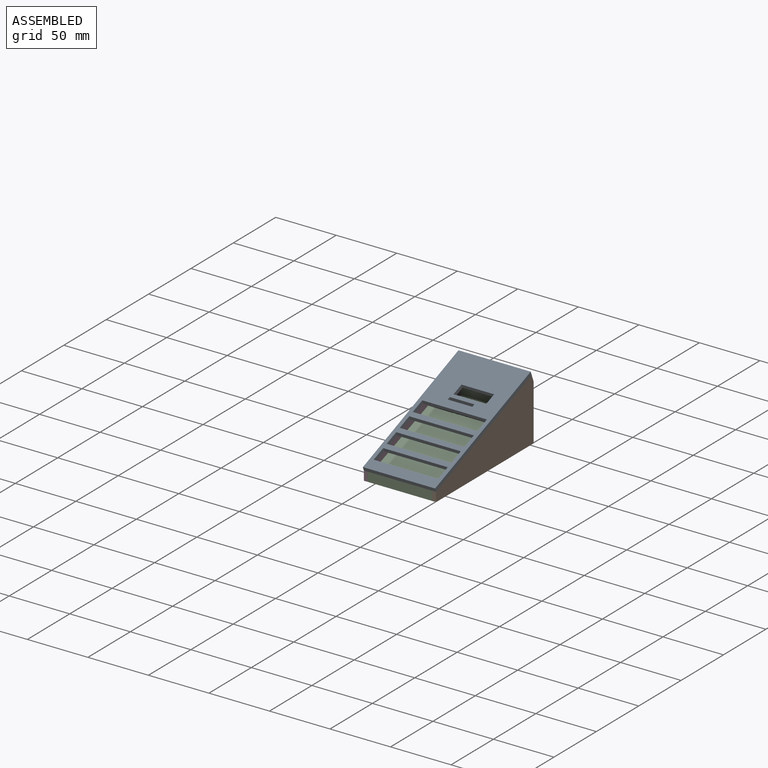
[diagram: assembled view]
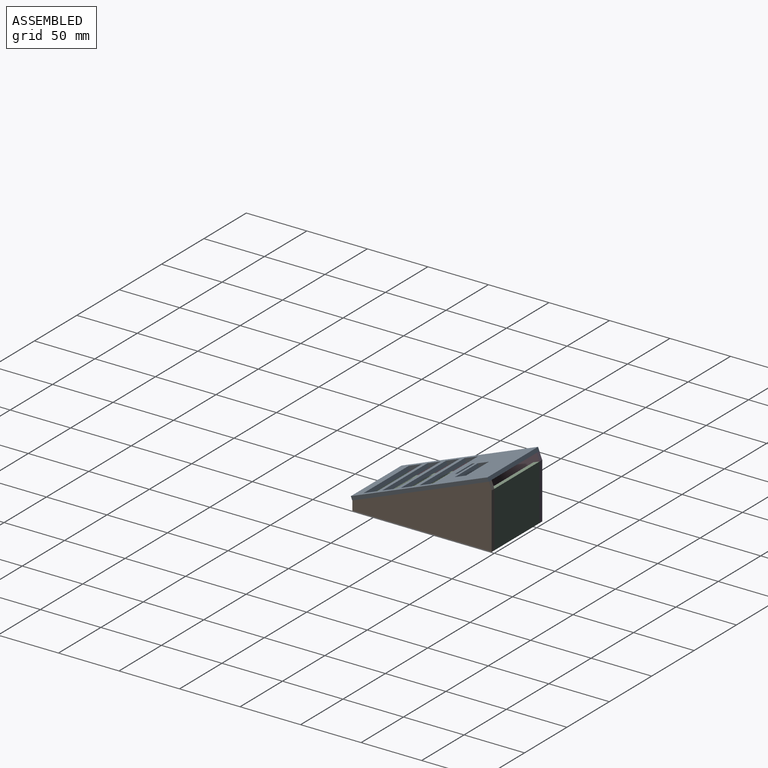
[diagram: assembled view, second angle]
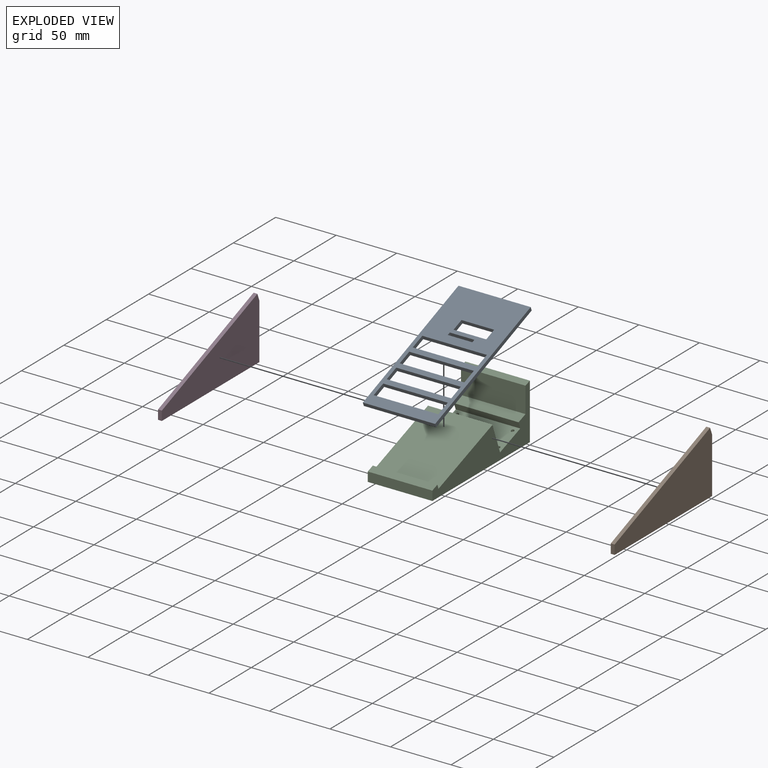
[diagram: exploded view]
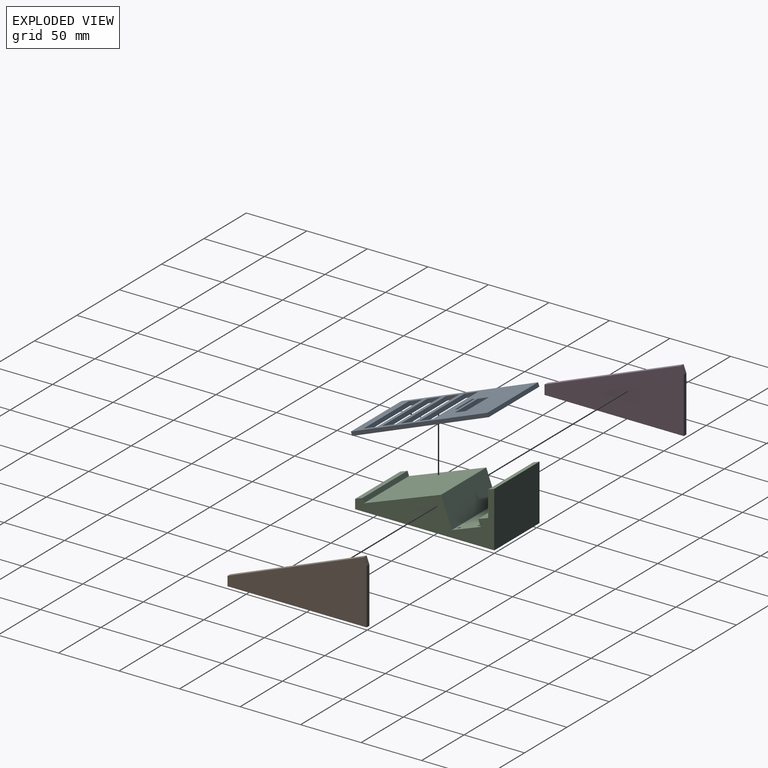
[diagram: exploded view, second angle]
ASSEMBLY  parts=4 mates=9
PART A: 30 faces, bbox 59.7x121.1x3.2 mm
  f0: plane 10x3.18mm, normal (1,0,0), area 31.8mm2, adj f1,f27,f28,f29
  f1: plane 27x3.18mm, normal (0,-1,0), area 85.7mm2, adj f0,f2,f28,f29
  f2: plane 10x3.18mm, normal (-1,0,0), area 31.8mm2, adj f1,f27,f28,f29
  f3: plane 12x3.18mm, normal (1,0,0), area 38.1mm2, adj f4,f21,f28,f29
  f4: plane 53.34x3.18mm, normal (0,-1,0), area 169.4mm2, adj f3,f5,f28,f29
  f5: plane 12x3.18mm, normal (-1,0,0), area 38.1mm2, adj f4,f21,f28,f29
  f6: plane 12x3.18mm, normal (1,0,0), area 38.1mm2, adj f7,f22,f28,f29
  f7: plane 53.34x3.18mm, normal (0,-1,0), area 169.4mm2, adj f6,f8,f28,f29
  f8: plane 12x3.18mm, normal (-1,0,0), area 38.1mm2, adj f7,f22,f28,f29
  f9: plane 12x3.18mm, normal (1,0,0), area 38.1mm2, adj f10,f23,f28,f29
  f10: plane 53.34x3.18mm, normal (0,-1,0), area 169.4mm2, adj f9,f11,f28,f29
  f11: plane 12x3.18mm, normal (-1,0,0), area 38.1mm2, adj f10,f23,f28,f29
  f12: plane 12x3.18mm, normal (1,0,0), area 38.1mm2, adj f13,f24,f28,f29
  f13: plane 53.34x3.18mm, normal (0,-1,0), area 169.4mm2, adj f12,f14,f28,f29
  f14: plane 12x3.18mm, normal (-1,0,0), area 38.1mm2, adj f13,f24,f28,f29
  f15: plane 59.69x3.18mm, normal (0,1,0), area 189.5mm2, adj f16,f25,f28,f29
  f16: plane 121.15x3.18mm, normal (-1,0,0), area 384.6mm2, adj f15,f17,f28,f29
  f17: plane 59.69x3.18mm, normal (0,-1,0), area 189.5mm2, adj f16,f25,f28,f29
  f18: plane 20.32x3.18mm, normal (0,1,0), area 64.5mm2, adj f19,f26,f28,f29
  f19: plane 3.18x2.54mm, normal (1,0,0), area 8.1mm2, adj f18,f20,f28,f29
  f20: plane 20.32x3.18mm, normal (0,-1,0), area 64.5mm2, adj f19,f26,f28,f29
  f21: plane 53.34x3.18mm, normal (0,1,0), area 169.4mm2, adj f3,f5,f28,f29
  f22: plane 53.34x3.18mm, normal (0,1,0), area 169.4mm2, adj f6,f8,f28,f29
  f23: plane 53.34x3.18mm, normal (0,1,0), area 169.4mm2, adj f9,f11,f28,f29
  f24: plane 53.34x3.18mm, normal (0,1,0), area 169.4mm2, adj f12,f14,f28,f29
  f25: plane 121.15x3.18mm, normal (1,0,0), area 384.6mm2, adj f15,f17,f28,f29
  f26: plane 3.18x2.54mm, normal (-1,0,0), area 8.1mm2, adj f18,f20,f28,f29
  f27: plane 27x3.18mm, normal (0,1,0), area 85.7mm2, adj f0,f2,f28,f29
  f28: plane 121.15x59.69mm, normal (0,0,1), area 4349.2mm2, adj f0,f1,f2,f3,f4,f5,f6,f7
  f29: plane 121.15x59.69mm, normal (0,0,-1), area 4349.2mm2, adj f0,f1,f2,f3,f4,f5,f6,f7
PART B: 7 faces, bbox 3.2x123.8x49.5 mm
  f0: plane 107.96x39.68mm, normal (0,-0.34,-0.94), area 365.2mm2, adj f1,f2,f3,f4
  f1: plane 7.26x3.18mm, normal (0,-0.94,0.34), area 24.6mm2, adj f0,f3,f4,f5
  f2: plane 43.13x15.85mm, normal (0,0.94,-0.34), area 145.9mm2, adj f0,f3,f4,f6
  f3: plane 123.81x49.48mm, normal (1,0,0), area 3472.1mm2, adj f0,f1,f2,f5,f6
  f4: plane 123.81x49.48mm, normal (-1,0,0), area 3472.1mm2, adj f0,f1,f2,f5,f6
  f5: plane 121.01x3.18mm, normal (0,-0.02,1), area 384.3mm2, adj f1,f3,f4,f6
  f6: plane 6.35x3.18mm, normal (0,1,0.02), area 20.2mm2, adj f2,f3,f4,f5
PART C: 22 faces, bbox 53.3x123.8x46.9 mm
  f0: cylinder r=1.27mm len=2.54mm, axis (0,0,-1), area 15.2mm2, adj f1,f2
  f1: plane 2.54x2.54mm, normal (0,0,1), area 5.1mm2, adj f0
  f2: plane 53.34x25.4mm, normal (0,0,1), area 1334.6mm2, adj f0,f4,f6,f8,f18,f19,f20,f21
  f3: plane 2.54x2.54mm, normal (0,0,1), area 5.1mm2, adj f4
  f4: cylinder r=1.27mm len=2.54mm, axis (0,0,-1), area 15.2mm2, adj f2,f3
  f5: plane 2.54x2.54mm, normal (0,0,1), area 5.1mm2, adj f6
  f6: cylinder r=1.27mm len=2.54mm, axis (0,0,-1), area 15.2mm2, adj f2,f5
  f7: plane 2.54x2.54mm, normal (0,0,1), area 5.1mm2, adj f8
  f8: cylinder r=1.27mm len=2.54mm, axis (0,0,-1), area 15.2mm2, adj f2,f7
  f9: plane 53.34x8.73mm, normal (0,0,1), area 465.4mm2, adj f10,f18,f19,f20
  f10: plane 53.34x19.89mm, normal (0,-0.94,0.34), area 1130.6mm2, adj f9,f11,f18,f19
  f11: plane 53.34x5.41mm, normal (0,0,1), area 288.7mm2, adj f10,f12,f18,f19
  f12: plane 53.34x43.13mm, normal (0,0.94,-0.34), area 2451.2mm2, adj f11,f13,f18,f19
  f13: plane 107.96x53.34mm, normal (0,-0.34,-0.94), area 6135.3mm2, adj f12,f14,f18,f19
  f14: plane 53.34x7.26mm, normal (0,-0.94,0.34), area 412.6mm2, adj f13,f15,f18,f19
  f15: plane 53.34x6.35mm, normal (0,0,1), area 338.7mm2, adj f14,f16,f18,f19
  f16: plane 53.34x3.81mm, normal (0,1,0), area 203.2mm2, adj f15,f17,f18,f19
  f17: plane 67.95x53.34mm, normal (0,0,1), area 3624.2mm2, adj f16,f18,f19,f21
  f18: plane 123.81x46.94mm, normal (1,0,0), area 1984.4mm2, adj f2,f9,f10,f11,f12,f13,f14,f15
  f19: plane 123.81x46.94mm, normal (-1,0,0), area 1984.4mm2, adj f2,f9,f10,f11,f12,f13,f14,f15
  f20: plane 53.34x5.72mm, normal (0,-1,0), area 304.8mm2, adj f2,f9,f18,f19
  f21: plane 53.34x25.61mm, normal (0,1,0), area 1366mm2, adj f2,f17,f18,f19
PART D: same geometry as B
PLACE A rot(axis=(1,0,0),21.4deg) t=(-26.67,-34.11,39.42)mm
PLACE B rot(axis=(1,0,0),20.2deg) t=(-23.5,-23.44,10.73)mm
PLACE C rot(axis=(1,0,0),20.2deg) t=(-26.67,-23.44,10.73)mm fixed
PLACE D rot(axis=(1,0,0),20.2deg) t=(-80.01,-23.44,10.73)mm
MATE planar D.f5 <-> A.f29  axis (0,-0.36,0.93) through (-56.51,-115.02,7.74)mm
MATE planar D.f1 <-> C.f14  axis (0,-1,0) through (-53.34,-115.02,0)mm
MATE planar D.f3 <-> C.f19  axis (1,0,0) through (-53.34,-115.02,0)mm
MATE planar B.f0 <-> C.f13  axis (0,0,-1) through (0,-115.02,0)mm
MATE planar B.f1 <-> C.f14  axis (0,-1,0) through (0,-115.02,0)mm
MATE planar D.f4 <-> A.f16  axis (-1,0,0) through (-56.51,-115.02,7.74)mm
MATE planar C.f13 <-> D.f0  axis (0,0,-1) through (-53.34,-115.02,0)mm
MATE planar C.f18 <-> B.f4  axis (1,0,0) through (0,-115.02,0)mm
MATE planar A.f15 <-> D.f6  axis (0,0.93,0.36) through (-56.51,-2.32,51.87)mm
